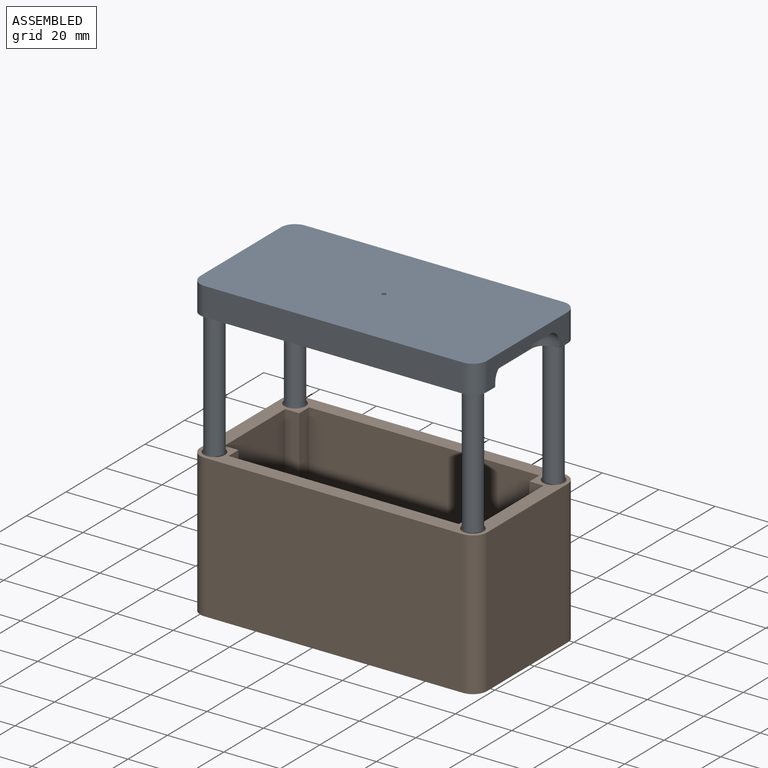
[diagram: assembled view]
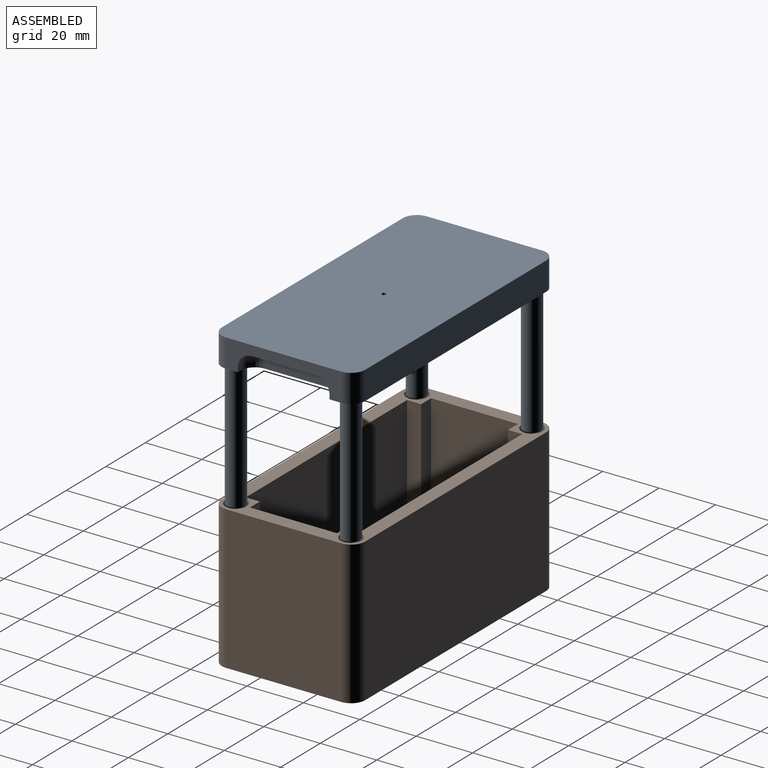
[diagram: assembled view, second angle]
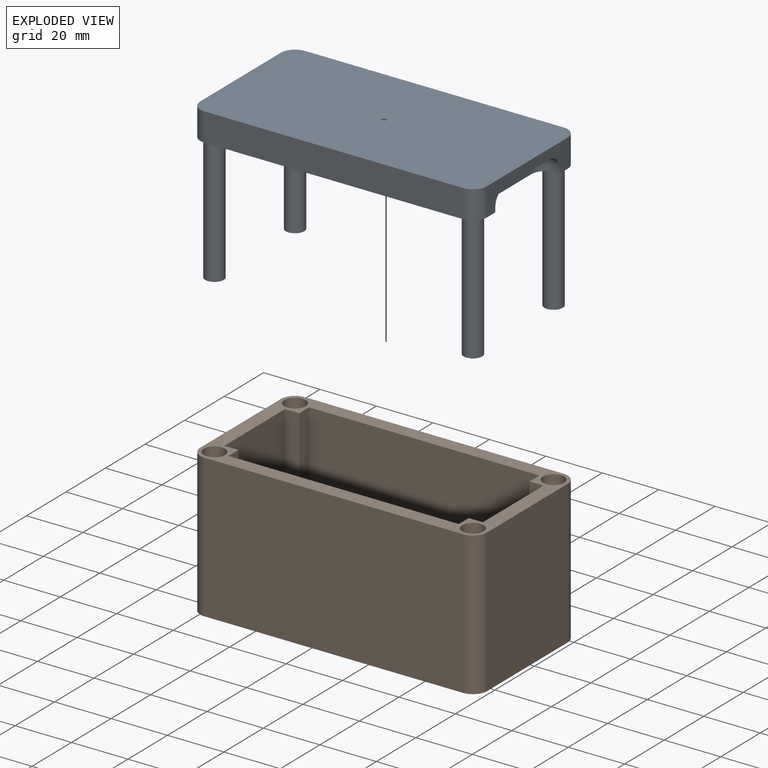
[diagram: exploded view]
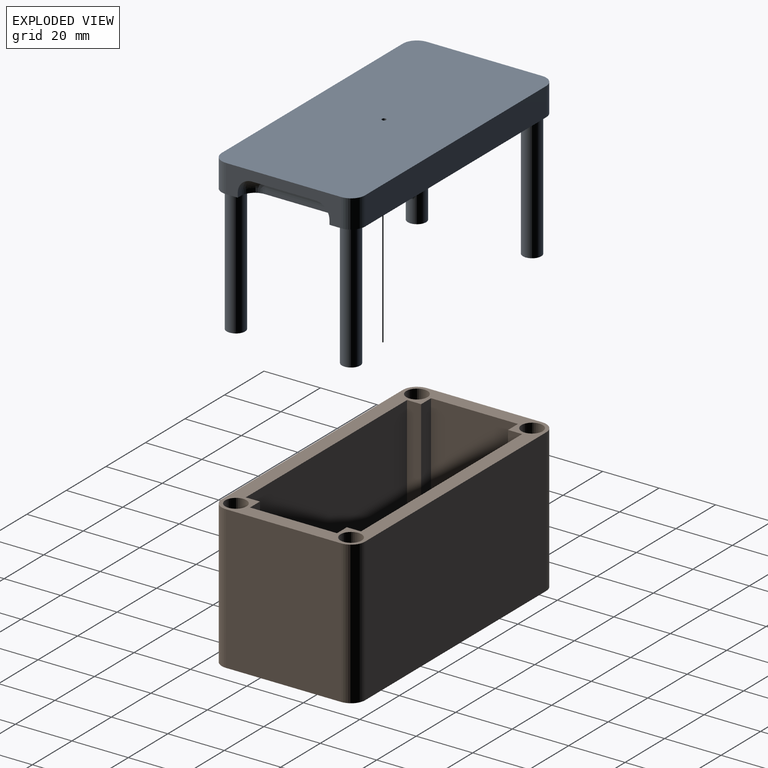
[diagram: exploded view, second angle]
ASSEMBLY  parts=2 mates=2
PART A: 117 faces, bbox 101.6x50.8x55 mm
  f0: plane 101.6x50.8mm, normal (0,0,1), area 2058mm2, adj f5,f6,f7,f8,f9,f10,f11,f13
  f1: plane 21x8mm, normal (0,0,1), area 98mm2, adj f53,f109,f110,f111,f112,f113,f114,f115
  f2: plane 21x4mm, normal (0,0,1), area 84mm2, adj f65,f73,f74,f75
  f3: plane 21x12mm, normal (0,0,1), area 196mm2, adj f68,f69,f70,f98,f99,f100,f101,f102
  f4: plane 21x8mm, normal (0,0,1), area 168mm2, adj f77,f78,f79,f80
  f5: plane 91.6x10mm, normal (0,1,0), area 916mm2, adj f0,f6,f13,f14
  f6: cylinder r=5mm len=10mm, axis (0,0,-1), area 78.5mm2, adj f0,f5,f7,f14
  f7: plane 40.8x10mm, normal (-1,0,0), area 207.5mm2, adj f0,f6,f8,f14,f34,f35,f36,f37
  f8: cylinder r=5mm len=10mm, axis (0,0,-1), area 78.5mm2, adj f0,f7,f9,f14
  f9: plane 91.6x10mm, normal (0,-1,0), area 916mm2, adj f0,f8,f10,f14
  f10: cylinder r=5mm len=10mm, axis (0,0,-1), area 78.5mm2, adj f0,f9,f11,f14
  f11: plane 40.8x10mm, normal (1,0,0), area 207.5mm2, adj f0,f10,f13,f14,f23,f24,f25,f26
  f12: cylinder r=0.75mm len=12.5mm, axis (0,0,-1), area 58.9mm2, adj f14,f106
  f13: cylinder r=5mm len=10mm, axis (0,0,-1), area 78.5mm2, adj f0,f5,f11,f14
  f14: plane 101.6x50.8mm, normal (0,0,-1), area 5138.1mm2, adj f5,f6,f7,f8,f9,f10,f11,f12
  f15: cylinder r=3.25mm len=45mm, axis (0,0,-1), area 918.9mm2, adj f0,f16
  f16: plane 6.5x6.5mm, normal (0,0,1), area 33.2mm2, adj f15
  f17: cylinder r=3.25mm len=45mm, axis (0,0,-1), area 918.9mm2, adj f0,f18
  f18: plane 6.5x6.5mm, normal (0,0,1), area 33.2mm2, adj f17
  f19: cylinder r=3.25mm len=45mm, axis (0,0,-1), area 918.9mm2, adj f0,f20
  f20: plane 6.5x6.5mm, normal (0,0,1), area 33.2mm2, adj f19
  f21: cylinder r=3.25mm len=45mm, axis (0,0,-1), area 918.9mm2, adj f0,f22
  f22: plane 6.5x6.5mm, normal (0,0,1), area 33.2mm2, adj f21
  f23: plane 1.5x1.5mm, normal (0,-1,0), area 2.2mm2, adj f0,f11,f27,f33
  f24: plane 1.5x1.5mm, normal (0,1,0), area 2.2mm2, adj f0,f11,f25,f29
  f25: cylinder r=5mm len=5mm, axis (1,0,0), area 11.8mm2, adj f11,f24,f26,f30
  f26: plane 22.5x1.5mm, normal (0,0,1), area 33.7mm2, adj f11,f25,f27,f31
  f27: cylinder r=5mm len=5mm, axis (1,0,0), area 11.8mm2, adj f11,f23,f26,f32
  f28: plane 22.5x1.5mm, normal (1,0,0), area 33.8mm2, adj f0,f29,f31,f33
  f29: cylinder r=5mm len=5mm, axis (0,0,-1), area 11.8mm2, adj f0,f24,f28,f30
  f30: sphere r=5mm, area 39.3mm2, adj f25,f29,f31
  f31: cylinder r=5mm len=22.5mm, axis (0,1,0), area 176.7mm2, adj f26,f28,f30,f32
  f32: sphere r=5mm, area 39.3mm2, adj f27,f31,f33
  f33: cylinder r=5mm len=5mm, axis (0,0,1), area 11.8mm2, adj f0,f23,f28,f32
  f34: plane 1.5x1.5mm, normal (0,-1,0), area 2.3mm2, adj f0,f7,f35,f44
  f35: cylinder r=5mm len=5mm, axis (-1,0,0), area 11.8mm2, adj f7,f34,f36,f43
  f36: plane 22.5x1.5mm, normal (0,0,1), area 33.8mm2, adj f7,f35,f37,f42
  f37: cylinder r=5mm len=5mm, axis (-1,0,0), area 11.8mm2, adj f7,f36,f38,f41
  f38: plane 1.5x1.5mm, normal (0,1,0), area 2.3mm2, adj f0,f7,f37,f40
  f39: plane 22.5x1.5mm, normal (-1,0,0), area 33.7mm2, adj f0,f40,f42,f44
  f40: cylinder r=5mm len=5mm, axis (0,0,1), area 11.8mm2, adj f0,f38,f39,f41
  f41: sphere r=5mm, area 39.3mm2, adj f37,f40,f42
  f42: cylinder r=5mm len=22.5mm, axis (0,-1,0), area 176.7mm2, adj f36,f39,f41,f43
  f43: sphere r=5mm, area 39.3mm2, adj f35,f42,f44
  f44: cylinder r=5mm len=5mm, axis (0,0,-1), area 11.8mm2, adj f0,f34,f39,f43
  f45: plane 28x2.5mm, normal (-1,0,0), area 70mm2, adj f0,f46,f50,f51
  f46: plane 4x2.5mm, normal (0,-1,0), area 10mm2, adj f0,f45,f47,f51
  f47: plane 35x5mm, normal (1,0,0), area 175mm2, adj f46,f48,f51,f89,f94,f95
  f48: plane 12x2.5mm, normal (0,1,0), area 30mm2, adj f0,f47,f49,f51
  f49: plane 35x5mm, normal (-1,0,0), area 105mm2, adj f0,f48,f50,f51,f97,f105,f106
  f50: plane 8x2.5mm, normal (0,-1,0), area 20mm2, adj f0,f45,f49,f51
  f51: plane 35x12mm, normal (0,0,1), area 196mm2, adj f45,f46,f47,f48,f49,f50
  f52: plane 4x2.5mm, normal (0,-1,0), area 10mm2, adj f0,f53,f63,f64
  f53: plane 35x5mm, normal (1,0,0), area 157.5mm2, adj f1,f52,f54,f64,f107,f108,f109,f115
  f54: plane 4x2.5mm, normal (0,1,0), area 10mm2, adj f0,f53,f55,f64
  f55: plane 14x2.5mm, normal (-1,0,0), area 35mm2, adj f0,f54,f56,f64
  f56: plane 4x2.5mm, normal (0,1,0), area 10mm2, adj f0,f55,f57,f64
  f57: plane 14x2.5mm, normal (1,0,0), area 35mm2, adj f0,f56,f58,f64
  f58: plane 4x2.5mm, normal (0,1,0), area 10mm2, adj f0,f57,f59,f64
  f59: plane 35x2.5mm, normal (-1,0,0), area 87.5mm2, adj f0,f58,f60,f64
  f60: plane 4x2.5mm, normal (0,-1,0), area 10mm2, adj f0,f59,f61,f64
  f61: plane 14x2.5mm, normal (1,0,0), area 35mm2, adj f0,f60,f62,f64
  f62: plane 4x2.5mm, normal (0,-1,0), area 10mm2, adj f0,f61,f63,f64
  f63: plane 14x2.5mm, normal (-1,0,0), area 35mm2, adj f0,f52,f62,f64
  f64: plane 35x12mm, normal (0,0,1), area 308mm2, adj f52,f53,f54,f55,f56,f57,f58,f59
  f65: plane 35x5mm, normal (-1,0,0), area 122.5mm2, adj f2,f66,f72,f73,f75,f76,f107,f108
  f66: plane 12x2.5mm, normal (0,-1,0), area 30mm2, adj f0,f65,f67,f76
  f67: plane 7x5mm, normal (1,0,0), area 35mm2, adj f66,f68,f76,f104,f105,f106
  f68: plane 4x2.5mm, normal (0,1,0), area 10mm2, adj f3,f67,f69,f76
  f69: plane 21x2.5mm, normal (1,0,0), area 52.5mm2, adj f3,f68,f70,f76
  f70: plane 4x2.5mm, normal (0,-1,0), area 10mm2, adj f3,f69,f71,f76
  f71: plane 7x5mm, normal (1,0,0), area 35mm2, adj f70,f72,f76,f97,f98,f106
  f72: plane 12x2.5mm, normal (0,1,0), area 30mm2, adj f0,f65,f71,f76
  f73: plane 4x2.5mm, normal (0,-1,0), area 10mm2, adj f2,f65,f74,f76
  f74: plane 21x2.5mm, normal (-1,0,0), area 52.5mm2, adj f2,f73,f75,f76
  f75: plane 4x2.5mm, normal (0,1,0), area 10mm2, adj f2,f65,f74,f76
  f76: plane 35x12mm, normal (0,0,1), area 252mm2, adj f65,f66,f67,f68,f69,f70,f71,f72
  f77: plane 35x5mm, normal (-1,0,0), area 122.5mm2, adj f4,f78,f80,f81,f83,f84,f85,f94
  f78: plane 8x2.5mm, normal (0,-1,0), area 20mm2, adj f4,f77,f79,f84
  f79: plane 21x2.5mm, normal (-1,0,0), area 52.5mm2, adj f4,f78,f80,f84
  f80: plane 8x2.5mm, normal (0,1,0), area 20mm2, adj f4,f77,f79,f84
  f81: plane 12x2.5mm, normal (0,-1,0), area 30mm2, adj f0,f77,f82,f84
  f82: plane 35x2.5mm, normal (1,0,0), area 87.5mm2, adj f0,f81,f83,f84
  f83: plane 12x2.5mm, normal (0,1,0), area 30mm2, adj f0,f77,f82,f84
  f84: plane 35x12mm, normal (0,0,1), area 252mm2, adj f77,f78,f79,f80,f81,f82,f83
  f85: plane 4x2.5mm, normal (0,-1,0), area 10mm2, adj f0,f77,f86,f95
  f86: plane 14x2.5mm, normal (1,0,0), area 35mm2, adj f0,f85,f87,f95
  f87: plane 4x2.5mm, normal (0,-1,0), area 10mm2, adj f0,f86,f88,f95
  f88: plane 14x2.5mm, normal (-1,0,0), area 35mm2, adj f0,f87,f89,f95
  f89: plane 4x2.5mm, normal (0,-1,0), area 10mm2, adj f0,f47,f88,f95
  f90: plane 4x2.5mm, normal (0,1,0), area 10mm2, adj f91,f93,f95,f96
  f91: plane 7x2.5mm, normal (1,0,0), area 17.5mm2, adj f90,f92,f95,f96
  f92: plane 4x2.5mm, normal (0,-1,0), area 10mm2, adj f91,f93,f95,f96
  f93: plane 7x2.5mm, normal (-1,0,0), area 17.5mm2, adj f90,f92,f95,f96
  f94: plane 12x2.5mm, normal (0,1,0), area 30mm2, adj f0,f47,f77,f95
  f95: plane 35x12mm, normal (0,0,1), area 336mm2, adj f47,f77,f85,f86,f87,f88,f89,f90
  f96: plane 7x4mm, normal (0,0,1), area 28mm2, adj f90,f91,f92,f93
  f97: plane 12x2.5mm, normal (0,-1,0), area 30mm2, adj f0,f49,f71,f106
  f98: plane 8x2.5mm, normal (0,1,0), area 20mm2, adj f3,f71,f99,f106
  f99: plane 7x2.5mm, normal (1,0,0), area 17.5mm2, adj f3,f98,f100,f106
  f100: plane 8x2.5mm, normal (0,-1,0), area 20mm2, adj f3,f99,f101,f106
  f101: plane 7x2.5mm, normal (1,0,0), area 17.5mm2, adj f3,f100,f102,f106
  f102: plane 8x2.5mm, normal (0,1,0), area 20mm2, adj f3,f101,f103,f106
  f103: plane 7x2.5mm, normal (1,0,0), area 17.5mm2, adj f3,f102,f104,f106
  f104: plane 8x2.5mm, normal (0,-1,0), area 20mm2, adj f3,f67,f103,f106
  f105: plane 12x2.5mm, normal (0,1,0), area 30mm2, adj f0,f49,f67,f106
  f106: plane 35x12mm, normal (0,0,1), area 306.2mm2, adj f12,f49,f67,f71,f97,f98,f99,f100
  f107: plane 12x2.5mm, normal (0,1,0), area 30mm2, adj f0,f53,f65,f116
  f108: plane 12x2.5mm, normal (0,-1,0), area 30mm2, adj f0,f53,f65,f116
  f109: plane 6x2.5mm, normal (0,1,0), area 15mm2, adj f1,f53,f110,f116
  f110: plane 7x2.5mm, normal (-1,0,0), area 17.5mm2, adj f1,f109,f111,f116
  f111: plane 2.5x2mm, normal (0,-1,0), area 5mm2, adj f1,f110,f112,f116
  f112: plane 7x2.5mm, normal (-1,0,0), area 17.5mm2, adj f1,f111,f113,f116
  f113: plane 4x2.5mm, normal (0,1,0), area 10mm2, adj f1,f112,f114,f116
  f114: plane 21x2.5mm, normal (1,0,0), area 52.5mm2, adj f1,f113,f115,f116
  f115: plane 8x2.5mm, normal (0,-1,0), area 20mm2, adj f1,f53,f114,f116
  f116: plane 35x12mm, normal (0,0,1), area 322mm2, adj f53,f65,f107,f108,f109,f110,f111,f112
PART B: 35 faces, bbox 101.6x50.8x50.8 mm
  f0: plane 91.6x40.8mm, normal (0,0,1), area 3637.3mm2, adj f1,f2,f3,f4,f15,f16,f17,f18
  f1: plane 45.8x30.8mm, normal (1,0,0), area 1410.6mm2, adj f0,f14,f19,f21
  f2: plane 81.6x45.8mm, normal (0,1,0), area 3737.3mm2, adj f0,f14,f18,f20
  f3: plane 45.8x30.8mm, normal (-1,0,0), area 1410.6mm2, adj f0,f14,f15,f17
  f4: plane 81.6x45.8mm, normal (0,-1,0), area 3737.3mm2, adj f0,f14,f16,f22
  f5: plane 91.6x50.8mm, normal (0,1,0), area 4653.3mm2, adj f6,f12,f13,f14
  f6: cylinder r=5mm len=50.8mm, axis (0,0,-1), area 399mm2, adj f5,f7,f13,f14
  f7: plane 50.8x40.8mm, normal (-1,0,0), area 2072.6mm2, adj f6,f8,f13,f14
  f8: cylinder r=5mm len=50.8mm, axis (0,0,-1), area 399mm2, adj f7,f9,f13,f14
  f9: plane 91.6x50.8mm, normal (0,-1,0), area 4653.3mm2, adj f8,f10,f13,f14
  f10: cylinder r=5mm len=50.8mm, axis (0,0,-1), area 399mm2, adj f9,f11,f13,f14
  f11: plane 50.8x40.8mm, normal (1,0,0), area 2072.6mm2, adj f10,f12,f13,f14
  f12: cylinder r=5mm len=50.8mm, axis (0,0,-1), area 399mm2, adj f5,f11,f13,f14
  f13: plane 101.6x50.8mm, normal (0,0,-1), area 5132.8mm2, adj f5,f6,f7,f8,f9,f10,f11,f12
  f14: plane 101.6x50.8mm, normal (0,0,1), area 1325.8mm2, adj f1,f2,f3,f4,f5,f6,f7,f8
  f15: plane 45.8x5mm, normal (0,-1,0), area 229mm2, adj f0,f3,f14,f16
  f16: plane 45.8x5mm, normal (-1,0,0), area 229mm2, adj f0,f4,f14,f15
  f17: plane 45.8x5mm, normal (0,1,0), area 229mm2, adj f0,f3,f14,f18
  f18: plane 45.8x5mm, normal (-1,0,0), area 229mm2, adj f0,f2,f14,f17
  f19: plane 45.8x5mm, normal (0,1,0), area 229mm2, adj f0,f1,f14,f20
  f20: plane 45.8x5mm, normal (1,0,0), area 229mm2, adj f0,f2,f14,f19
  f21: plane 45.8x5mm, normal (0,-1,0), area 229mm2, adj f0,f1,f14,f22
  f22: plane 45.8x5mm, normal (1,0,0), area 229mm2, adj f0,f4,f14,f21
  f23: cylinder r=3.75mm len=45mm, axis (0,0,1), area 1060.3mm2, adj f14,f24
  f24: plane 7.5x7.5mm, normal (0,0,1), area 42.4mm2, adj f23,f34
  f25: cylinder r=3.75mm len=45mm, axis (0,0,1), area 1060.3mm2, adj f14,f26
  f26: plane 7.5x7.5mm, normal (0,0,1), area 42.4mm2, adj f25,f33
  f27: cylinder r=3.75mm len=45mm, axis (0,0,1), area 1060.3mm2, adj f14,f28
  f28: plane 7.5x7.5mm, normal (0,0,1), area 42.4mm2, adj f27,f32
  f29: cylinder r=3.75mm len=45mm, axis (0,0,1), area 1060.3mm2, adj f14,f30
  f30: plane 7.5x7.5mm, normal (0,0,1), area 42.4mm2, adj f29,f31
  f31: cylinder r=0.75mm len=5.8mm, axis (0,0,1), area 27.3mm2, adj f13,f30
  f32: cylinder r=0.75mm len=5.8mm, axis (0,0,1), area 27.3mm2, adj f13,f28
  f33: cylinder r=0.75mm len=5.8mm, axis (0,0,1), area 27.3mm2, adj f13,f26
  f34: cylinder r=0.75mm len=5.8mm, axis (0,0,1), area 27.3mm2, adj f13,f24
PLACE A rot(axis=(1,0,0),180deg) t=(-168.13,236.01,-730.06)mm
PLACE B t=(-179.8,180.73,-835.86)mm
MATE slider B.f6 <-> A.f8  axis (0,0,1) through (-225.6,201.13,-785.06)mm
MATE slider A.f6 <-> B.f8  axis (0,0,-1) through (-225.6,160.33,-785.06)mm
